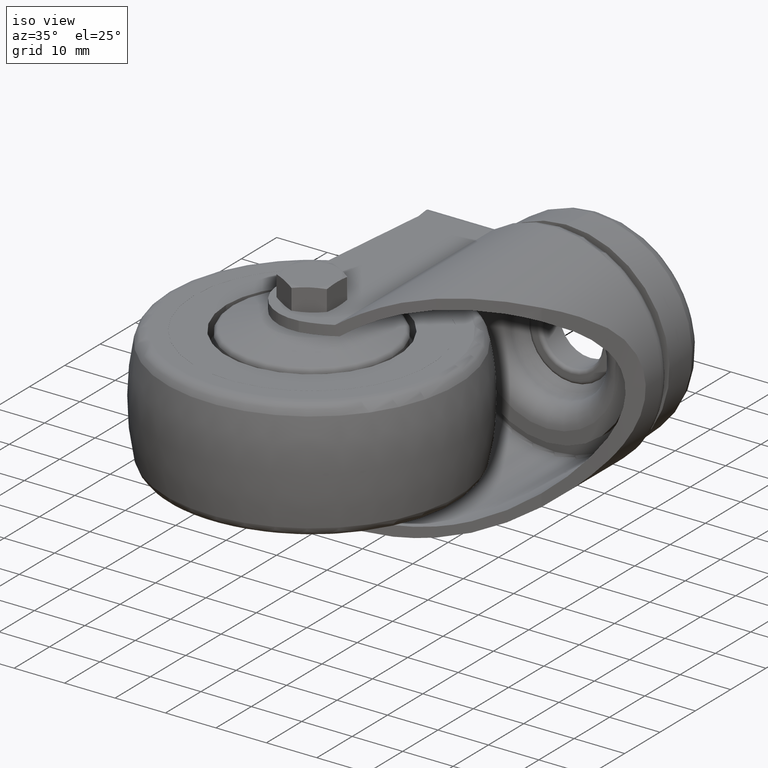
[diagram: clean part render]
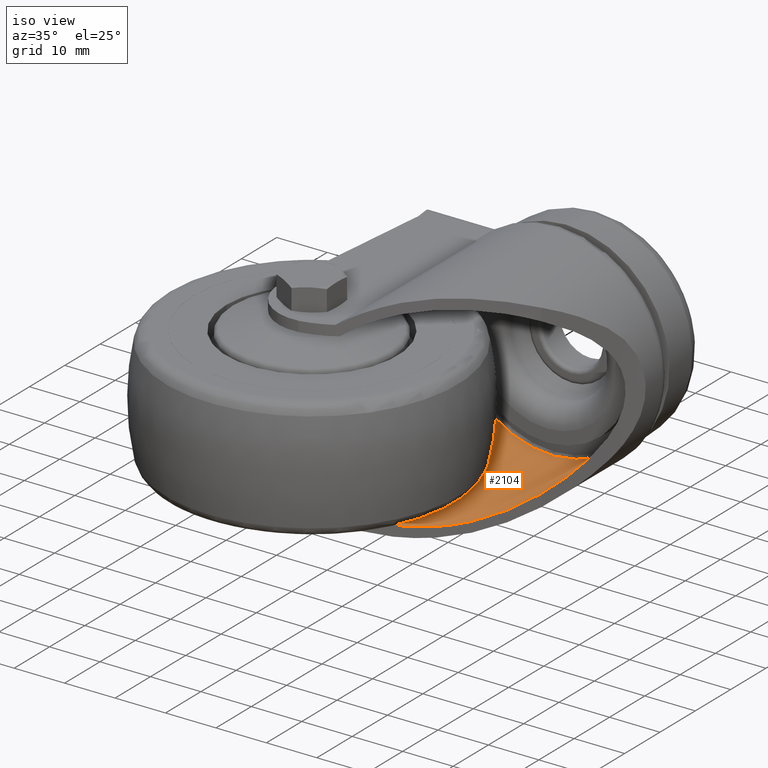
[diagram: same view with one face highlighted and labeled with its STEP entity id]
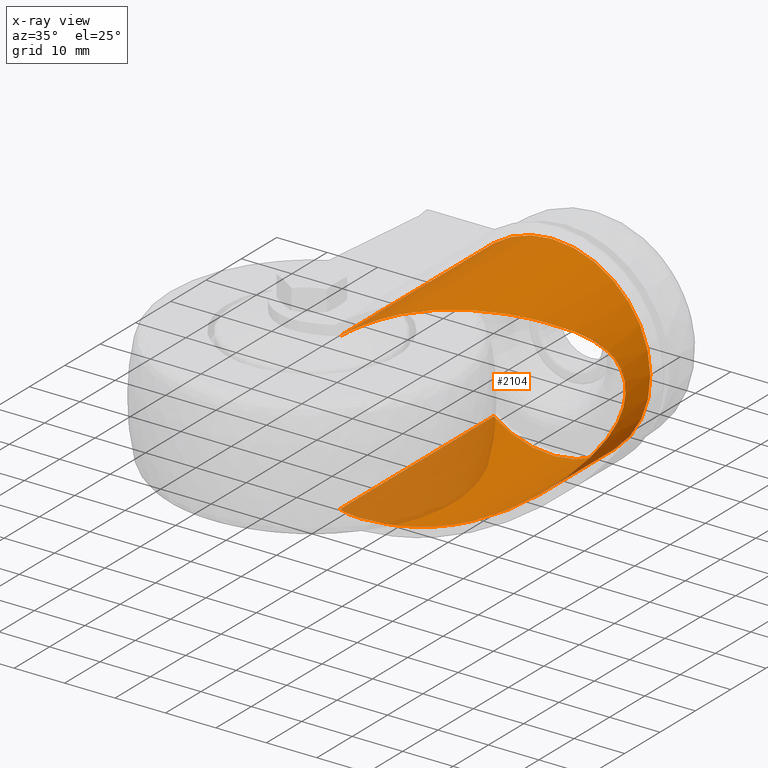
[diagram: x-ray of the same camera — body ghosted, the highlighted face saturated]
A machine part, iso view. The second image highlights one B-rep face of the part: STEP entity #2104.
The next image is the same camera in x-ray: the body ghosted, the highlighted face saturated — about 22% of this face is hidden behind the body in this view.
In plain terms, the highlighted cylindrical surface (partial cylindrical patch) has radius 19.4 mm, axis along (0, 1, 0).
Its self-contained STEP definition (entity closure, byte-faithful):
#88=B_SPLINE_CURVE_WITH_KNOTS('',3,(#3687,#3688,#3689,#3690,#3691,#3692),
 .UNSPECIFIED.,.F.,.F.,(4,2,4),(1.46720212975635,1.55789749416428,1.83880737344496),
 .UNSPECIFIED.);
#89=B_SPLINE_CURVE_WITH_KNOTS('',3,(#3696,#3697,#3698,#3699,#3700,#3701,
#3702,#3703),.UNSPECIFIED.,.F.,.F.,(4,2,2,4),(9.55655485942859,10.1037235071746,
10.7010663085162,11.2836263549861),.UNSPECIFIED.);
#90=B_SPLINE_CURVE_WITH_KNOTS('',3,(#3705,#3706,#3707,#3708,#3709,#3710),
 .UNSPECIFIED.,.F.,.F.,(4,2,4),(7.91666393816986,8.36556602356446,9.28425745361914),
 .UNSPECIFIED.);
#91=B_SPLINE_CURVE_WITH_KNOTS('',3,(#3712,#3713,#3714,#3715,#3716,#3717,
#3718,#3719,#3720,#3721,#3722,#3723,#3724,#3725),.UNSPECIFIED.,.F.,.F.,
(4,2,2,2,2,2,4),(4.93924355569081,5.15668726348202,5.46542536598725,5.77416346849249,
6.08290157099773,6.39163967350297,6.60908338129418),.UNSPECIFIED.);
#92=B_SPLINE_CURVE_WITH_KNOTS('',3,(#3727,#3728,#3729,#3730,#3731,#3732),
 .UNSPECIFIED.,.F.,.F.,(4,2,4),(4.83931514837437,5.75800657842905,6.20690866382365),
 .UNSPECIFIED.);
#93=B_SPLINE_CURVE_WITH_KNOTS('',3,(#3734,#3735,#3736,#3737,#3738,#3739,
#3740,#3741),.UNSPECIFIED.,.F.,.F.,(4,2,2,4),(3.26428676847198,3.84684681494186,
4.44418961628352,4.99135826402952),.UNSPECIFIED.);
#94=B_SPLINE_CURVE_WITH_KNOTS('',3,(#3745,#3746,#3747,#3748,#3749,#3750),
 .UNSPECIFIED.,.F.,.F.,(4,2,4),(5.335425973941,5.61633585322168,5.70703121762961),
 .UNSPECIFIED.);
#110=ELLIPSE('',#2540,0.254231629189674,0.214213363422984);
#111=ELLIPSE('',#2543,0.25423163076159,0.214213366031557);
#112=ELLIPSE('',#2544,26.3367699701956,19.4);
#113=ELLIPSE('',#2545,26.3367699701956,19.4);
#146=CYLINDRICAL_SURFACE('',#2539,19.4);
#313=FACE_OUTER_BOUND('',#470,.T.);
#470=EDGE_LOOP('',(#1522,#1523,#1524,#1525,#1526,#1527,#1528,#1529,#1530,
#1531,#1532,#1533,#1534,#1535,#1536));
#620=LINE('',#3685,#699);
#621=LINE('',#3751,#700);
#699=VECTOR('',#2975,1000.);
#700=VECTOR('',#2980,1000.);
#806=CIRCLE('',#2541,19.4);
#807=CIRCLE('',#2542,19.4);
#955=VERTEX_POINT('',#3675);
#956=VERTEX_POINT('',#3676);
#957=VERTEX_POINT('',#3678);
#958=VERTEX_POINT('',#3680);
#959=VERTEX_POINT('',#3682);
#960=VERTEX_POINT('',#3684);
#961=VERTEX_POINT('',#3686);
#962=VERTEX_POINT('',#3693);
#963=VERTEX_POINT('',#3695);
#964=VERTEX_POINT('',#3704);
#965=VERTEX_POINT('',#3711);
#966=VERTEX_POINT('',#3726);
#967=VERTEX_POINT('',#3733);
#968=VERTEX_POINT('',#3742);
#969=VERTEX_POINT('',#3744);
#1164=EDGE_CURVE('',#955,#956,#110,.T.);
#1165=EDGE_CURVE('',#957,#955,#806,.T.);
#1166=EDGE_CURVE('',#958,#957,#807,.T.);
#1167=EDGE_CURVE('',#959,#958,#111,.T.);
#1168=EDGE_CURVE('',#960,#959,#620,.F.);
#1169=EDGE_CURVE('',#961,#960,#88,.T.);
#1170=EDGE_CURVE('',#961,#962,#112,.T.);
#1171=EDGE_CURVE('',#963,#962,#89,.T.);
#1172=EDGE_CURVE('',#964,#963,#90,.T.);
#1173=EDGE_CURVE('',#964,#965,#91,.T.);
#1174=EDGE_CURVE('',#966,#965,#92,.T.);
#1175=EDGE_CURVE('',#967,#966,#93,.T.);
#1176=EDGE_CURVE('',#967,#968,#113,.T.);
#1177=EDGE_CURVE('',#969,#968,#94,.T.);
#1178=EDGE_CURVE('',#956,#969,#621,.T.);
#1522=ORIENTED_EDGE('',*,*,#1164,.F.);
#1523=ORIENTED_EDGE('',*,*,#1165,.F.);
#1524=ORIENTED_EDGE('',*,*,#1166,.F.);
#1525=ORIENTED_EDGE('',*,*,#1167,.F.);
#1526=ORIENTED_EDGE('',*,*,#1168,.F.);
#1527=ORIENTED_EDGE('',*,*,#1169,.F.);
#1528=ORIENTED_EDGE('',*,*,#1170,.T.);
#1529=ORIENTED_EDGE('',*,*,#1171,.F.);
#1530=ORIENTED_EDGE('',*,*,#1172,.F.);
#1531=ORIENTED_EDGE('',*,*,#1173,.T.);
#1532=ORIENTED_EDGE('',*,*,#1174,.F.);
#1533=ORIENTED_EDGE('',*,*,#1175,.F.);
#1534=ORIENTED_EDGE('',*,*,#1176,.T.);
#1535=ORIENTED_EDGE('',*,*,#1177,.F.);
#1536=ORIENTED_EDGE('',*,*,#1178,.F.);
#2104=ADVANCED_FACE('',(#313),#146,.F.);
#2539=AXIS2_PLACEMENT_3D('',#3674,#2965,#2966);
#2540=AXIS2_PLACEMENT_3D('',#3677,#2967,#2968);
#2541=AXIS2_PLACEMENT_3D('',#3679,#2969,#2970);
#2542=AXIS2_PLACEMENT_3D('',#3681,#2971,#2972);
#2543=AXIS2_PLACEMENT_3D('',#3683,#2973,#2974);
#2544=AXIS2_PLACEMENT_3D('',#3694,#2976,#2977);
#2545=AXIS2_PLACEMENT_3D('',#3743,#2978,#2979);
#2965=DIRECTION('center_axis',(0.,1.,0.));
#2966=DIRECTION('ref_axis',(1.,0.,1.83697019872103E-16));
#2967=DIRECTION('center_axis',(0.601572746549318,7.78468647494054E-6,-0.798818020921228));
#2968=DIRECTION('ref_axis',(-0.0694708188614769,0.996211701406139,-0.05230727777471));
#2969=DIRECTION('center_axis',(0.,-1.,0.));
#2970=DIRECTION('ref_axis',(0.,0.,-1.));
#2971=DIRECTION('center_axis',(0.,-1.,0.));
#2972=DIRECTION('ref_axis',(0.,0.,-1.));
#2973=DIRECTION('center_axis',(0.601572746554681,7.78468672017383E-6,0.79881802091719));
#2974=DIRECTION('ref_axis',(0.0694708217638549,-0.996211701088956,-0.0523072799608567));
#2975=DIRECTION('',(0.,-1.,0.));
#2976=DIRECTION('center_axis',(0.676314784341893,-0.736612728969965,0.));
#2977=DIRECTION('ref_axis',(-0.736612728969965,-0.676314784341893,0.));
#2978=DIRECTION('center_axis',(0.676314784341893,-0.736612728969965,0.));
#2979=DIRECTION('ref_axis',(-0.736612728969965,-0.676314784341893,0.));
#2980=DIRECTION('',(0.,-1.,0.));
#3674=CARTESIAN_POINT('Origin',(21.,-7.5,0.));
#3675=CARTESIAN_POINT('',(9.33284932797029,38.12,15.4995998398719));
#3676=CARTESIAN_POINT('',(9.33338095247816,38.1,15.5));
#3677=CARTESIAN_POINT('Origin',(9.16199930039925,38.1075696809605,15.3709362213652));
#3678=CARTESIAN_POINT('',(21.,38.12,19.4));
#3679=CARTESIAN_POINT('Origin',(21.,38.12,0.));
#3680=CARTESIAN_POINT('',(9.33284932797028,38.12,-15.4995998398719));
#3681=CARTESIAN_POINT('Origin',(21.,38.12,0.));
#3682=CARTESIAN_POINT('',(9.33338095247815,38.1,-15.5));
#3683=CARTESIAN_POINT('Origin',(9.16199929830197,38.1075696810531,-15.370936219784));
#3684=CARTESIAN_POINT('',(9.33338095247815,-5.46825667073388,-15.5));
#3685=CARTESIAN_POINT('',(9.33338095247815,-7.5,-15.5));
#3686=CARTESIAN_POINT('',(12.0700000000002,-3.37899999999986,-17.2225172376166));
#3687=CARTESIAN_POINT('Ctrl Pts',(12.0700000000002,-3.37899999999984,-17.2225172376167));
#3688=CARTESIAN_POINT('Ctrl Pts',(11.8611698671572,-3.57249641169148,-17.114237300337));
#3689=CARTESIAN_POINT('Ctrl Pts',(11.6502723804671,-3.75874166945998,-17.0000586377374));
#3690=CARTESIAN_POINT('Ctrl Pts',(10.7813922155577,-4.49163978734793,-16.5078736923608));
#3691=CARTESIAN_POINT('Ctrl Pts',(10.0578462263485,-5.01728019529338,-16.0452942169938));
#3692=CARTESIAN_POINT('Ctrl Pts',(9.33338095247814,-5.46825667073387,-15.5));
#3693=CARTESIAN_POINT('',(21.1099999999999,4.92099999999993,-19.3996881418233));
#3694=CARTESIAN_POINT('Origin',(21.,4.82000442477876,0.));
#3695=CARTESIAN_POINT('',(32.7795197701577,18.1503066436,-15.4143736163512));
#3696=CARTESIAN_POINT('Ctrl Pts',(32.7795197701578,18.1503066435999,-15.4143736163511));
#3697=CARTESIAN_POINT('Ctrl Pts',(31.7648067854449,16.6933971869096,-16.1898077638524));
#3698=CARTESIAN_POINT('Ctrl Pts',(30.6591398633477,15.2145951051046,-16.8754156810472));
#3699=CARTESIAN_POINT('Ctrl Pts',(28.1928564933927,12.1619340229409,-18.0740430366718));
#3700=CARTESIAN_POINT('Ctrl Pts',(26.8171840368735,10.5911327320665,-18.5652607049742));
#3701=CARTESIAN_POINT('Ctrl Pts',(23.9969649846397,7.62348294722524,-19.2203462489722));
#3702=CARTESIAN_POINT('Ctrl Pts',(22.5549234175189,6.22319272933466,-19.391495145381));
#3703=CARTESIAN_POINT('Ctrl Pts',(21.1099999999999,4.92099999999988,-19.3996881418233));
#3704=CARTESIAN_POINT('',(38.7884849647765,28.3920001140622,-7.74143414736068));
#3705=CARTESIAN_POINT('Ctrl Pts',(38.7884849647761,28.3920001140633,-7.74143414736142));
#3706=CARTESIAN_POINT('Ctrl Pts',(38.2844142167237,27.4535645904155,-8.89970207966302));
#3707=CARTESIAN_POINT('Ctrl Pts',(37.6988090975156,26.3884464839626,-9.93207294919899));
#3708=CARTESIAN_POINT('Ctrl Pts',(35.888072441963,23.1892481316688,-12.6279229770125));
#3709=CARTESIAN_POINT('Ctrl Pts',(34.4188259913496,20.7175989867527,-14.1616311746222));
#3710=CARTESIAN_POINT('Ctrl Pts',(32.7795197701572,18.1503066436005,-15.4143736163516));
#3711=CARTESIAN_POINT('',(38.7884849647765,28.3920001140622,7.74143414736068));
#3712=CARTESIAN_POINT('Ctrl Pts',(38.7884849647765,28.3920001140622,-7.74143414736067));
#3713=CARTESIAN_POINT('Ctrl Pts',(39.0326226147524,28.8383838829746,-7.18044779350615));
#3714=CARTESIAN_POINT('Ctrl Pts',(39.262752588099,29.2411650873811,-6.57845059036593));
#3715=CARTESIAN_POINT('Ctrl Pts',(39.756931681606,30.0830168839157,-5.04314036722109));
#3716=CARTESIAN_POINT('Ctrl Pts',(39.9947223450758,30.4672463075892,-4.07350278733728));
#3717=CARTESIAN_POINT('Ctrl Pts',(40.3163808143046,30.9802138062672,-2.06647886665128));
#3718=CARTESIAN_POINT('Ctrl Pts',(40.4,31.1092426230289,-1.02912700835079));
#3719=CARTESIAN_POINT('Ctrl Pts',(40.4,31.1092426230289,1.02912700835079));
#3720=CARTESIAN_POINT('Ctrl Pts',(40.3163808143046,30.9802138062672,2.06647886665128));
#3721=CARTESIAN_POINT('Ctrl Pts',(39.9947223450758,30.4672463075892,4.07350278733728));
#3722=CARTESIAN_POINT('Ctrl Pts',(39.756931681606,30.0830168839157,5.04314036722109));
#3723=CARTESIAN_POINT('Ctrl Pts',(39.262752588099,29.2411650873811,6.57845059036592));
#3724=CARTESIAN_POINT('Ctrl Pts',(39.0326226147524,28.8383838829746,7.18044779350615));
#3725=CARTESIAN_POINT('Ctrl Pts',(38.7884849647765,28.3920001140622,7.74143414736068));
#3726=CARTESIAN_POINT('',(32.7795197701577,18.1503066436,15.4143736163512));
#3727=CARTESIAN_POINT('Ctrl Pts',(32.7795197701572,18.1503066436005,15.4143736163516));
#3728=CARTESIAN_POINT('Ctrl Pts',(34.4188259913496,20.7175989867527,14.1616311746222));
#3729=CARTESIAN_POINT('Ctrl Pts',(35.888072441963,23.1892481316688,12.6279229770125));
#3730=CARTESIAN_POINT('Ctrl Pts',(37.6988090975156,26.3884464839626,9.932072949199));
#3731=CARTESIAN_POINT('Ctrl Pts',(38.2844142167237,27.4535645904155,8.89970207966302));
#3732=CARTESIAN_POINT('Ctrl Pts',(38.7884849647761,28.3920001140633,7.74143414736141));
#3733=CARTESIAN_POINT('',(21.1099999999999,4.92099999999993,19.3996881418233));
#3734=CARTESIAN_POINT('Ctrl Pts',(21.1099999999999,4.92099999999988,19.3996881418233));
#3735=CARTESIAN_POINT('Ctrl Pts',(22.5549234175189,6.22319272933466,19.391495145381));
#3736=CARTESIAN_POINT('Ctrl Pts',(23.9969649846397,7.62348294722524,19.2203462489722));
#3737=CARTESIAN_POINT('Ctrl Pts',(26.8171840368734,10.5911327320665,18.5652607049742));
#3738=CARTESIAN_POINT('Ctrl Pts',(28.1928564933927,12.1619340229409,18.0740430366718));
#3739=CARTESIAN_POINT('Ctrl Pts',(30.6591398633477,15.2145951051046,16.8754156810472));
#3740=CARTESIAN_POINT('Ctrl Pts',(31.7648067854449,16.6933971869096,16.1898077638524));
#3741=CARTESIAN_POINT('Ctrl Pts',(32.7795197701578,18.1503066435999,15.4143736163511));
#3742=CARTESIAN_POINT('',(12.0700000000002,-3.37899999999986,17.2225172376166));
#3743=CARTESIAN_POINT('Origin',(21.,4.82000442477876,0.));
#3744=CARTESIAN_POINT('',(9.33338095247815,-5.46825667073388,15.5));
#3745=CARTESIAN_POINT('Ctrl Pts',(9.33338095247814,-5.46825667073387,15.5));
#3746=CARTESIAN_POINT('Ctrl Pts',(10.0578462263485,-5.01728019529338,16.0452942169938));
#3747=CARTESIAN_POINT('Ctrl Pts',(10.7813922155577,-4.49163978734793,16.5078736923608));
#3748=CARTESIAN_POINT('Ctrl Pts',(11.6502723804671,-3.75874166945998,17.0000586377374));
#3749=CARTESIAN_POINT('Ctrl Pts',(11.8611698671572,-3.57249641169148,17.114237300337));
#3750=CARTESIAN_POINT('Ctrl Pts',(12.0700000000002,-3.37899999999985,17.2225172376167));
#3751=CARTESIAN_POINT('',(9.33338095247815,-7.5,15.5));